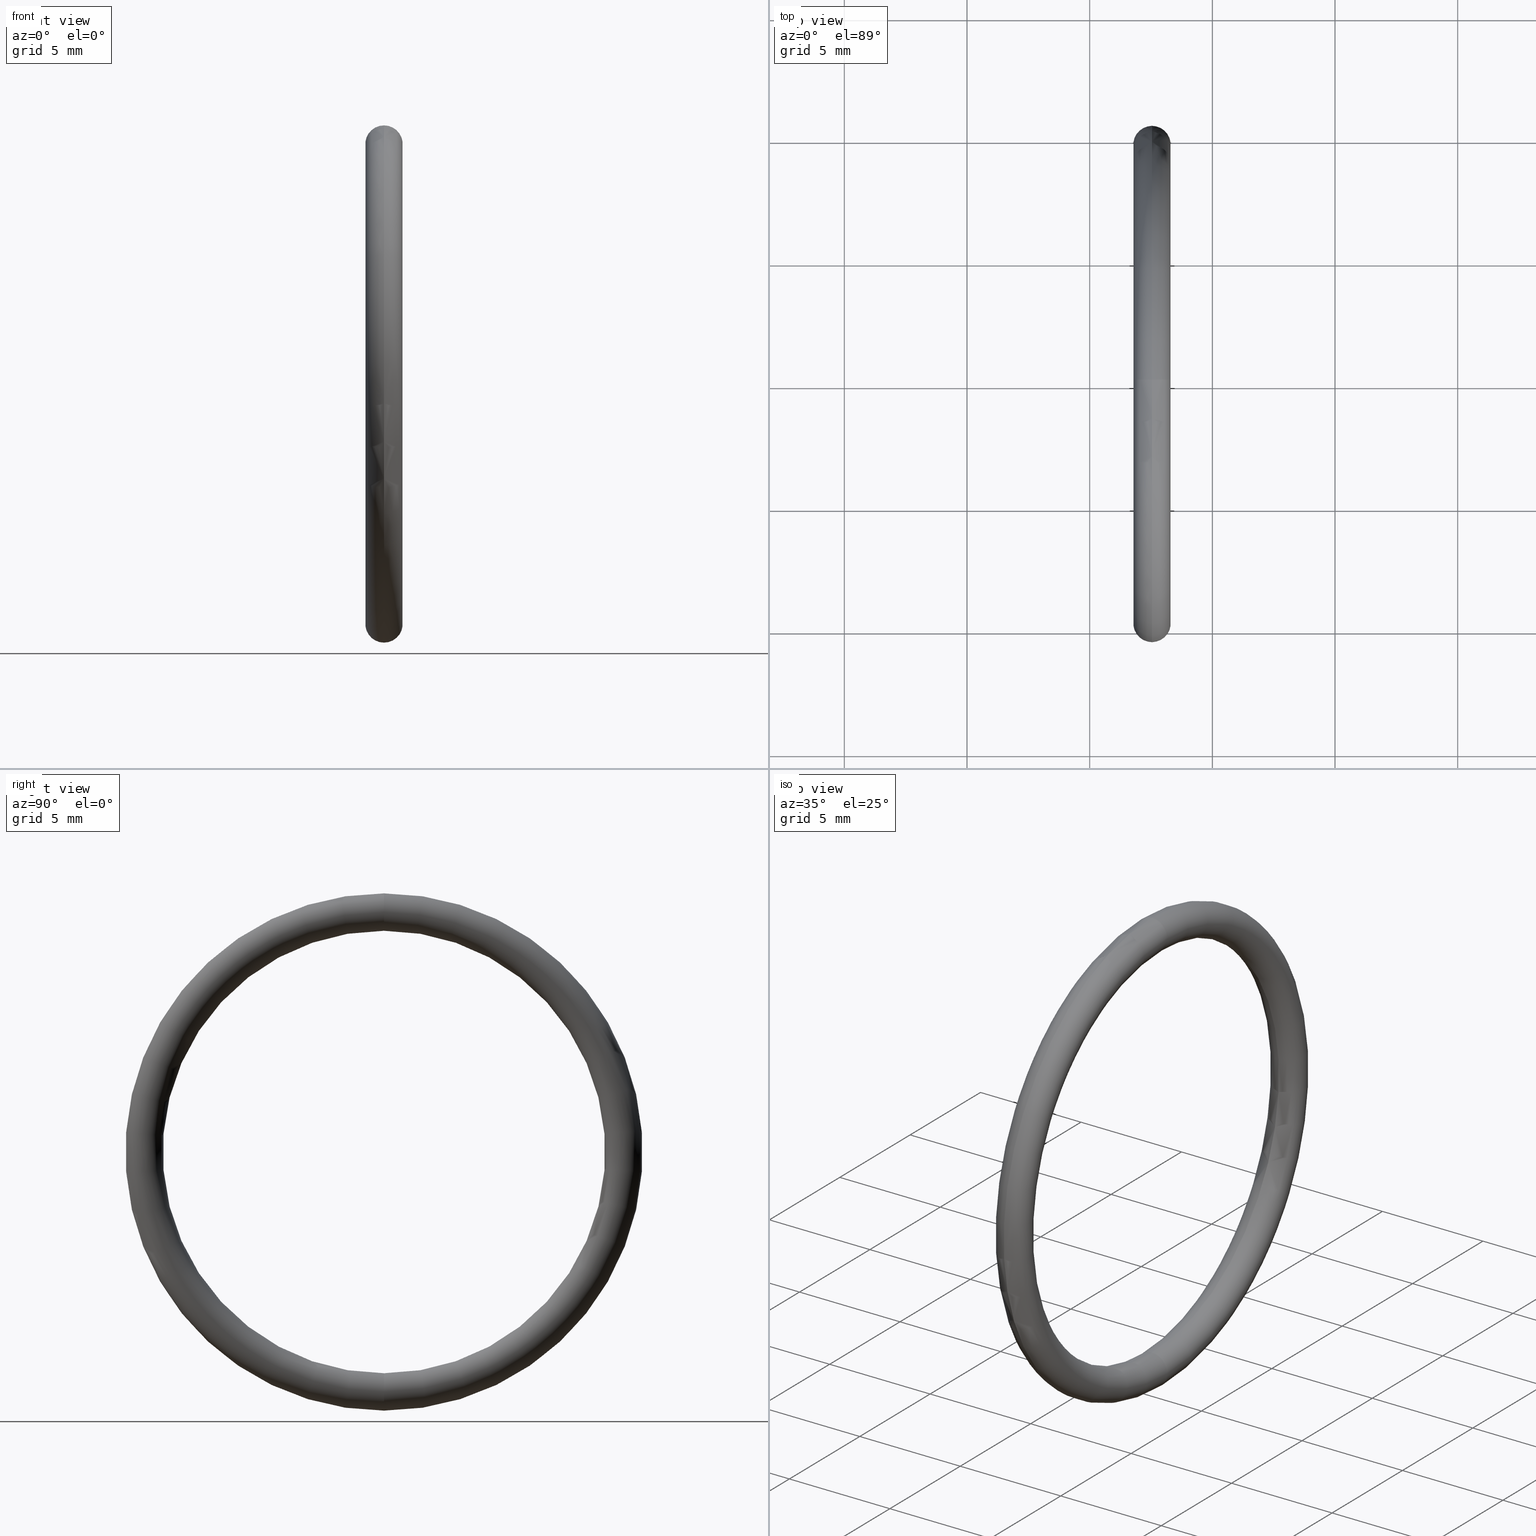
[diagram: canonical four-view strip — front | top / right | iso, engineering-drawing reading convention]
A machine part, canonical four-view strip (front | top / right | iso — engineering-drawing reading convention). The complete STEP part file that produces these views, byte-faithful:
ISO-10303-21;
HEADER;
FILE_DESCRIPTION (( 'STEP AP203' ),
    '1' );
FILE_NAME ('OR-16-VT.STEP',
    '2008-06-24T09:58:24',
    ( 'BSI05' ),
    ( 'BAYSTATE' ),
    'SwSTEP 2.0',
    'SolidWorks 2007',
    '' );
FILE_SCHEMA (( 'CONFIG_CONTROL_DESIGN' ));
ENDSEC;

DATA;
#1 = DIRECTION ( 'NONE',  ( 0.0000000000000000000, 0.0000000000000000000, -1.000000000000000000 ) ) ;
#2 = DIRECTION ( 'NONE',  ( 0.0000000000000000000, -1.000000000000000000, 0.0000000000000000000 ) ) ;
#3 = AXIS2_PLACEMENT_3D ( 'NONE', #11, #2, #1 ) ;
#4 = CIRCLE ( 'NONE', #3, 0.03000000000000002300 ) ;
#5 = CARTESIAN_POINT ( 'NONE',  ( 0.1000000000000000600, 0.0000000000000000000, 0.3850000000000000100 ) ) ;
#6 = DIRECTION ( 'NONE',  ( 0.0000000000000000000, 0.0000000000000000000, 1.000000000000000000 ) ) ;
#7 = DIRECTION ( 'NONE',  ( -1.000000000000000000, 0.0000000000000000000, 0.0000000000000000000 ) ) ;
#8 = CARTESIAN_POINT ( 'NONE',  ( 0.1000000000000000600, 0.0000000000000000000, 0.0000000000000000000 ) ) ;
#9 = AXIS2_PLACEMENT_3D ( 'NONE', #8, #7, #6 ) ;
#10 = CIRCLE ( 'NONE', #9, 0.4150000000000000400 ) ;
#11 = CARTESIAN_POINT ( 'NONE',  ( 0.1000000000000000600, 0.0000000000000000000, 0.3850000000000000100 ) ) ;
#12 = DIRECTION ( 'NONE',  ( 0.0000000000000000000, 0.0000000000000000000, 1.000000000000000000 ) ) ;
#13 = AXIS2_PLACEMENT_3D ( 'NONE', #58, #59, #12 ) ;
#14 = TOROIDAL_SURFACE ( 'NONE', #13, 0.3850000000000000100, 0.03000000000000000900 ) ;
#15 = AXIS2_PLACEMENT_3D ( 'NONE', #168, #116, #104 ) ;
#16 = CIRCLE ( 'NONE', #15, 0.4150000000000000400 ) ;
#17 = DIRECTION ( 'NONE',  ( 0.0000000000000000000, 0.0000000000000000000, 1.000000000000000000 ) ) ;
#18 = DIRECTION ( 'NONE',  ( -1.000000000000000000, 0.0000000000000000000, 0.0000000000000000000 ) ) ;
#19 = CARTESIAN_POINT ( 'NONE',  ( 0.1000000000000000600, 0.0000000000000000000, 0.0000000000000000000 ) ) ;
#20 = AXIS2_PLACEMENT_3D ( 'NONE', #19, #18, #17 ) ;
#21 = TOROIDAL_SURFACE ( 'NONE', #20, 0.3850000000000000100, 0.03000000000000000900 ) ;
#22 = FACE_OUTER_BOUND ( 'NONE', #55, .T. ) ;
#23 = DIRECTION ( 'NONE',  ( 0.0000000000000000000, -1.224646799147352200E-016, 1.000000000000000000 ) ) ;
#24 = DIRECTION ( 'NONE',  ( 0.0000000000000000000, 1.000000000000000000, 1.224646799147353200E-016 ) ) ;
#25 = CARTESIAN_POINT ( 'NONE',  ( 0.1000000000000000600, 4.714890176717309300E-017, -0.3850000000000000100 ) ) ;
#26 = AXIS2_PLACEMENT_3D ( 'NONE', #25, #24, #23 ) ;
#27 = CIRCLE ( 'NONE', #26, 0.03000000000000002300 ) ;
#28 = DIRECTION ( 'NONE',  ( 0.0000000000000000000, 0.0000000000000000000, -1.000000000000000000 ) ) ;
#29 = DIRECTION ( 'NONE',  ( 0.0000000000000000000, -1.000000000000000000, 0.0000000000000000000 ) ) ;
#30 = AXIS2_PLACEMENT_3D ( 'NONE', #5, #29, #28 ) ;
#31 = CIRCLE ( 'NONE', #30, 0.03000000000000002300 ) ;
#32 = FACE_OUTER_BOUND ( 'NONE', #78, .T. ) ;
#33 = DIRECTION ( 'NONE',  ( 0.0000000000000000000, 0.0000000000000000000, 1.000000000000000000 ) ) ;
#34 = DIRECTION ( 'NONE',  ( -1.000000000000000000, 0.0000000000000000000, 0.0000000000000000000 ) ) ;
#35 = CARTESIAN_POINT ( 'NONE',  ( 0.1000000000000000600, 0.0000000000000000000, 0.0000000000000000000 ) ) ;
#36 = AXIS2_PLACEMENT_3D ( 'NONE', #35, #34, #33 ) ;
#37 = CIRCLE ( 'NONE', #36, 0.3549999999999999800 ) ;
#38 = CARTESIAN_POINT ( 'NONE',  ( 0.1000000000000000600, 0.0000000000000000000, 0.0000000000000000000 ) ) ;
#39 = DIRECTION ( 'NONE',  ( 0.0000000000000000000, 0.0000000000000000000, 1.000000000000000000 ) ) ;
#40 = DIRECTION ( 'NONE',  ( -1.000000000000000000, 0.0000000000000000000, 0.0000000000000000000 ) ) ;
#41 = AXIS2_PLACEMENT_3D ( 'NONE', #87, #40, #39 ) ;
#42 = TOROIDAL_SURFACE ( 'NONE', #41, 0.3850000000000000100, 0.03000000000000000900 ) ;
#43 = CARTESIAN_POINT ( 'NONE',  ( 0.1000000000000000600, 0.0000000000000000000, 0.3549999999999999800 ) ) ;
#44 = VERTEX_POINT ( 'NONE', #89 ) ;
#45 = ORIENTED_EDGE ( 'NONE', *, *, #100, .F. ) ;
#46 = ORIENTED_EDGE ( 'NONE', *, *, #57, .T. ) ;
#47 = ADVANCED_FACE ( 'NONE', ( #88 ), #42, .T. ) ;
#48 = ORIENTED_EDGE ( 'NONE', *, *, #91, .F. ) ;
#49 = MANIFOLD_SOLID_BREP ( 'NONE', #99 ) ;
#50 = VERTEX_POINT ( 'NONE', #43 ) ;
#51 = ORIENTED_EDGE ( 'NONE', *, *, #81, .T. ) ;
#52 = EDGE_LOOP ( 'NONE', ( #48, #92, #53, #54 ) ) ;
#53 = ORIENTED_EDGE ( 'NONE', *, *, #83, .T. ) ;
#54 = ORIENTED_EDGE ( 'NONE', *, *, #100, .T. ) ;
#55 = EDGE_LOOP ( 'NONE', ( #102, #45, #46, #98 ) ) ;
#56 = ORIENTED_EDGE ( 'NONE', *, *, #57, .F. ) ;
#57 = EDGE_CURVE ( 'NONE', #80, #50, #37, .T. ) ;
#58 = CARTESIAN_POINT ( 'NONE',  ( 0.1000000000000000600, 0.0000000000000000000, 0.0000000000000000000 ) ) ;
#59 = DIRECTION ( 'NONE',  ( -1.000000000000000000, 0.0000000000000000000, 0.0000000000000000000 ) ) ;
#60 = DIRECTION ( 'NONE',  ( 0.0000000000000000000, 0.0000000000000000000, 1.000000000000000000 ) ) ;
#61 = DIRECTION ( 'NONE',  ( -1.000000000000000000, 0.0000000000000000000, 0.0000000000000000000 ) ) ;
#62 = AXIS2_PLACEMENT_3D ( 'NONE', #70, #61, #60 ) ;
#63 = CIRCLE ( 'NONE', #62, 0.3549999999999999800 ) ;
#64 = FACE_OUTER_BOUND ( 'NONE', #86, .T. ) ;
#65 = DIRECTION ( 'NONE',  ( 0.0000000000000000000, -1.224646799147352200E-016, 1.000000000000000000 ) ) ;
#66 = DIRECTION ( 'NONE',  ( 0.0000000000000000000, 1.000000000000000000, 1.224646799147353200E-016 ) ) ;
#67 = AXIS2_PLACEMENT_3D ( 'NONE', #68, #66, #65 ) ;
#68 = CARTESIAN_POINT ( 'NONE',  ( 0.1000000000000000600, 4.714890176717309300E-017, -0.3850000000000000100 ) ) ;
#69 = CIRCLE ( 'NONE', #67, 0.03000000000000002300 ) ;
#70 = CARTESIAN_POINT ( 'NONE',  ( 0.1000000000000000600, 0.0000000000000000000, 0.0000000000000000000 ) ) ;
#71 = CARTESIAN_POINT ( 'NONE',  ( 0.1000000000000000600, 4.347496136973103500E-017, -0.3549999999999999800 ) ) ;
#72 = DIRECTION ( 'NONE',  ( 0.0000000000000000000, 0.0000000000000000000, 1.000000000000000000 ) ) ;
#73 = DIRECTION ( 'NONE',  ( -1.000000000000000000, 0.0000000000000000000, 0.0000000000000000000 ) ) ;
#74 = AXIS2_PLACEMENT_3D ( 'NONE', #38, #73, #72 ) ;
#75 = TOROIDAL_SURFACE ( 'NONE', #74, 0.3850000000000000100, 0.03000000000000000900 ) ;
#76 = CARTESIAN_POINT ( 'NONE',  ( 0.1000000000000000600, 5.082284216461516300E-017, -0.4150000000000000400 ) ) ;
#77 = ADVANCED_FACE ( 'NONE', ( #32 ), #75, .T. ) ;
#78 = EDGE_LOOP ( 'NONE', ( #93, #96, #94, #56 ) ) ;
#79 = VERTEX_POINT ( 'NONE', #76 ) ;
#80 = VERTEX_POINT ( 'NONE', #71 ) ;
#81 = EDGE_CURVE ( 'NONE', #79, #80, #69, .T. ) ;
#82 = ORIENTED_EDGE ( 'NONE', *, *, #83, .F. ) ;
#83 = EDGE_CURVE ( 'NONE', #50, #80, #63, .T. ) ;
#84 = ORIENTED_EDGE ( 'NONE', *, *, #95, .F. ) ;
#85 = ADVANCED_FACE ( 'NONE', ( #64 ), #14, .T. ) ;
#86 = EDGE_LOOP ( 'NONE', ( #84, #90, #51, #82 ) ) ;
#87 = CARTESIAN_POINT ( 'NONE',  ( 0.1000000000000000600, 0.0000000000000000000, 0.0000000000000000000 ) ) ;
#88 = FACE_OUTER_BOUND ( 'NONE', #52, .T. ) ;
#89 = CARTESIAN_POINT ( 'NONE',  ( 0.1000000000000000600, 0.0000000000000000000, 0.4150000000000000400 ) ) ;
#90 = ORIENTED_EDGE ( 'NONE', *, *, #91, .T. ) ;
#91 = EDGE_CURVE ( 'NONE', #44, #79, #10, .T. ) ;
#92 = ORIENTED_EDGE ( 'NONE', *, *, #97, .F. ) ;
#93 = ORIENTED_EDGE ( 'NONE', *, *, #81, .F. ) ;
#94 = ORIENTED_EDGE ( 'NONE', *, *, #95, .T. ) ;
#95 = EDGE_CURVE ( 'NONE', #44, #50, #4, .T. ) ;
#96 = ORIENTED_EDGE ( 'NONE', *, *, #103, .T. ) ;
#97 = EDGE_CURVE ( 'NONE', #50, #44, #31, .T. ) ;
#98 = ORIENTED_EDGE ( 'NONE', *, *, #97, .T. ) ;
#99 = CLOSED_SHELL ( 'NONE', ( #77, #85, #47, #101 ) ) ;
#100 = EDGE_CURVE ( 'NONE', #80, #79, #27, .T. ) ;
#101 = ADVANCED_FACE ( 'NONE', ( #22 ), #21, .T. ) ;
#102 = ORIENTED_EDGE ( 'NONE', *, *, #103, .F. ) ;
#103 = EDGE_CURVE ( 'NONE', #79, #44, #16, .T. ) ;
#104 = DIRECTION ( 'NONE',  ( 0.0000000000000000000, 0.0000000000000000000, 1.000000000000000000 ) ) ;
#105 = CC_DESIGN_PERSON_AND_ORGANIZATION_ASSIGNMENT ( #107, #106, ( #112 ) ) ;
#106 = PERSON_AND_ORGANIZATION_ROLE ( 'design_owner' ) ;
#107 = PERSON_AND_ORGANIZATION ( #111, #108 ) ;
#108 = ORGANIZATION ( 'UNSPECIFIED', 'UNSPECIFIED', '' ) ;
#109 =( NAMED_UNIT ( * ) SI_UNIT ( $, .STERADIAN. ) SOLID_ANGLE_UNIT ( ) );
#110 =( NAMED_UNIT ( * ) PLANE_ANGLE_UNIT ( ) SI_UNIT ( $, .RADIAN. ) );
#111 = PERSON ( 'UNSPECIFIED', 'UNSPECIFIED', 'UNSPECIFIED', ('UNSPECIFIED'), ('UNSPECIFIED'), ('UNSPECIFIED') ) ;
#112 = PRODUCT ( 'OR-16-VT', 'OR-16-VT', '', ( #113 ) ) ;
#113 = MECHANICAL_CONTEXT ( 'NONE', #115, 'mechanical' ) ;
#114 = APPLICATION_PROTOCOL_DEFINITION ( 'international standard', 'config_control_design', 1994, #115 ) ;
#115 = APPLICATION_CONTEXT ( 'configuration controlled 3d designs of mechanical parts and assemblies' ) ;
#116 = DIRECTION ( 'NONE',  ( -1.000000000000000000, 0.0000000000000000000, 0.0000000000000000000 ) ) ;
#117 = PRODUCT_DEFINITION_FORMATION_WITH_SPECIFIED_SOURCE ( 'ANY', '', #112, .NOT_KNOWN. ) ;
#118 = CC_DESIGN_DATE_AND_TIME_ASSIGNMENT ( #120, #119, ( #138 ) ) ;
#119 = DATE_TIME_ROLE ( 'creation_date' ) ;
#120 = DATE_AND_TIME ( #121, #122 ) ;
#121 = CALENDAR_DATE ( 2008, 24, 6 ) ;
#122 = LOCAL_TIME ( 15, 28, 24.00000000000000000, #123 ) ;
#123 = COORDINATED_UNIVERSAL_TIME_OFFSET ( 5, 30, .AHEAD. ) ;
#124 = CC_DESIGN_PERSON_AND_ORGANIZATION_ASSIGNMENT ( #126, #125, ( #138 ) ) ;
#125 = PERSON_AND_ORGANIZATION_ROLE ( 'creator' ) ;
#126 = PERSON_AND_ORGANIZATION ( #111, #108 ) ;
#127 = CC_DESIGN_APPROVAL ( #135, ( #138 ) ) ;
#128 = APPROVAL_DATE_TIME ( #129, #135 ) ;
#129 = DATE_AND_TIME ( #130, #131 ) ;
#130 = CALENDAR_DATE ( 2008, 24, 6 ) ;
#131 = LOCAL_TIME ( 15, 28, 24.00000000000000000, #132 ) ;
#132 = COORDINATED_UNIVERSAL_TIME_OFFSET ( 5, 30, .AHEAD. ) ;
#133 = APPROVAL_PERSON_ORGANIZATION ( #137, #135, #134 ) ;
#134 = APPROVAL_ROLE ( '' ) ;
#135 = APPROVAL ( #136, 'UNSPECIFIED' ) ;
#136 = APPROVAL_STATUS ( 'not_yet_approved' ) ;
#137 = PERSON_AND_ORGANIZATION ( #111, #108 ) ;
#138 = PRODUCT_DEFINITION ( 'UNKNOWN', '', #117, #139 ) ;
#139 = DESIGN_CONTEXT ( 'detailed design', #141, 'design' ) ;
#140 = APPLICATION_PROTOCOL_DEFINITION ( 'international standard', 'config_control_design', 1994, #141 ) ;
#141 = APPLICATION_CONTEXT ( 'configuration controlled 3d designs of mechanical parts and assemblies' ) ;
#142 = DATE_AND_TIME ( #194, #195 ) ;
#143 = CC_DESIGN_PERSON_AND_ORGANIZATION_ASSIGNMENT ( #145, #144, ( #146 ) ) ;
#144 = PERSON_AND_ORGANIZATION_ROLE ( 'classification_officer' ) ;
#145 = PERSON_AND_ORGANIZATION ( #111, #108 ) ;
#146 = SECURITY_CLASSIFICATION ( '', '', #147 ) ;
#147 = SECURITY_CLASSIFICATION_LEVEL ( 'unclassified' ) ;
#148 = CC_DESIGN_PERSON_AND_ORGANIZATION_ASSIGNMENT ( #150, #149, ( #117 ) ) ;
#149 = PERSON_AND_ORGANIZATION_ROLE ( 'design_supplier' ) ;
#150 = PERSON_AND_ORGANIZATION ( #111, #108 ) ;
#151 = CC_DESIGN_PERSON_AND_ORGANIZATION_ASSIGNMENT ( #153, #152, ( #117 ) ) ;
#152 = PERSON_AND_ORGANIZATION_ROLE ( 'creator' ) ;
#153 = PERSON_AND_ORGANIZATION ( #111, #108 ) ;
#154 = CC_DESIGN_APPROVAL ( #162, ( #117 ) ) ;
#155 = APPROVAL_DATE_TIME ( #156, #162 ) ;
#156 = DATE_AND_TIME ( #157, #158 ) ;
#157 = CALENDAR_DATE ( 2008, 24, 6 ) ;
#158 = LOCAL_TIME ( 15, 28, 24.00000000000000000, #159 ) ;
#159 = COORDINATED_UNIVERSAL_TIME_OFFSET ( 5, 30, .AHEAD. ) ;
#160 = APPROVAL_PERSON_ORGANIZATION ( #164, #162, #161 ) ;
#161 = APPROVAL_ROLE ( '' ) ;
#162 = APPROVAL ( #163, 'UNSPECIFIED' ) ;
#163 = APPROVAL_STATUS ( 'not_yet_approved' ) ;
#164 = PERSON_AND_ORGANIZATION ( #111, #108 ) ;
#165 = ADVANCED_BREP_SHAPE_REPRESENTATION ( 'OR-16-VT', ( #49, #174 ), #166 ) ;
#166 =( GEOMETRIC_REPRESENTATION_CONTEXT ( 3 ) GLOBAL_UNCERTAINTY_ASSIGNED_CONTEXT ( ( #169 ) ) GLOBAL_UNIT_ASSIGNED_CONTEXT ( ( #175, #110, #109 ) ) REPRESENTATION_CONTEXT ( 'NONE', 'WORKASPACE' ) );
#167 = DIMENSIONAL_EXPONENTS ( 1.000000000000000000, 0.0000000000000000000, 0.0000000000000000000, 0.0000000000000000000, 0.0000000000000000000, 0.0000000000000000000, 0.0000000000000000000 ) ;
#168 = CARTESIAN_POINT ( 'NONE',  ( 0.1000000000000000600, 0.0000000000000000000, 0.0000000000000000000 ) ) ;
#169 = UNCERTAINTY_MEASURE_WITH_UNIT (LENGTH_MEASURE( 1.000000000000000100E-005 ), #175, 'distance_accuracy_value', 'NONE');
#170 = SHAPE_DEFINITION_REPRESENTATION ( #178, #165 ) ;
#171 = DIRECTION ( 'NONE',  ( 1.000000000000000000, 0.0000000000000000000, 0.0000000000000000000 ) ) ;
#172 = DIRECTION ( 'NONE',  ( 0.0000000000000000000, 0.0000000000000000000, 1.000000000000000000 ) ) ;
#173 = CARTESIAN_POINT ( 'NONE',  ( 0.0000000000000000000, 0.0000000000000000000, 0.0000000000000000000 ) ) ;
#174 = AXIS2_PLACEMENT_3D ( 'NONE', #173, #172, #171 ) ;
#175 =( CONVERSION_BASED_UNIT ( 'INCH', #177 ) LENGTH_UNIT ( ) NAMED_UNIT ( #167 ) );
#176 =( LENGTH_UNIT ( ) NAMED_UNIT ( * ) SI_UNIT ( $, .METRE. ) );
#177 = LENGTH_MEASURE_WITH_UNIT ( LENGTH_MEASURE( 0.02539999999999999900 ), #176 );
#178 = PRODUCT_DEFINITION_SHAPE ( 'NONE', 'NONE',  #138 ) ;
#179 = PRODUCT_RELATED_PRODUCT_CATEGORY ( 'detail', '', ( #112 ) ) ;
#180 = CC_DESIGN_SECURITY_CLASSIFICATION ( #146, ( #117 ) ) ;
#181 = CC_DESIGN_APPROVAL ( #189, ( #146 ) ) ;
#182 = APPROVAL_DATE_TIME ( #183, #189 ) ;
#183 = DATE_AND_TIME ( #184, #185 ) ;
#184 = CALENDAR_DATE ( 2008, 24, 6 ) ;
#185 = LOCAL_TIME ( 15, 28, 24.00000000000000000, #186 ) ;
#186 = COORDINATED_UNIVERSAL_TIME_OFFSET ( 5, 30, .AHEAD. ) ;
#187 = APPROVAL_PERSON_ORGANIZATION ( #191, #189, #188 ) ;
#188 = APPROVAL_ROLE ( '' ) ;
#189 = APPROVAL ( #190, 'UNSPECIFIED' ) ;
#190 = APPROVAL_STATUS ( 'not_yet_approved' ) ;
#191 = PERSON_AND_ORGANIZATION ( #111, #108 ) ;
#192 = CC_DESIGN_DATE_AND_TIME_ASSIGNMENT ( #142, #193, ( #146 ) ) ;
#193 = DATE_TIME_ROLE ( 'classification_date' ) ;
#194 = CALENDAR_DATE ( 2008, 24, 6 ) ;
#195 = LOCAL_TIME ( 15, 28, 24.00000000000000000, #196 ) ;
#196 = COORDINATED_UNIVERSAL_TIME_OFFSET ( 5, 30, .AHEAD. ) ;
ENDSEC;
END-ISO-10303-21;
